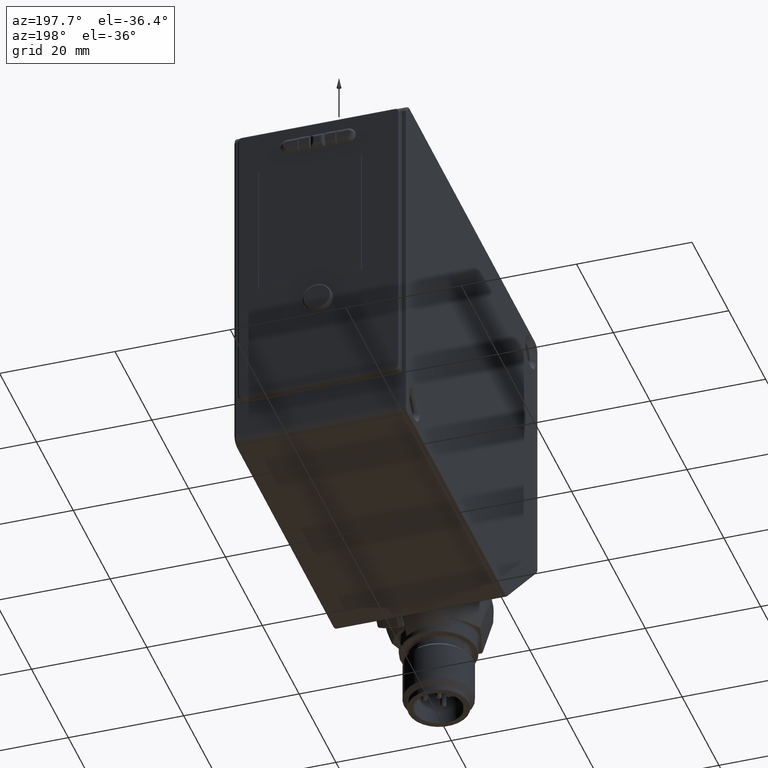
[diagram: clean part render]
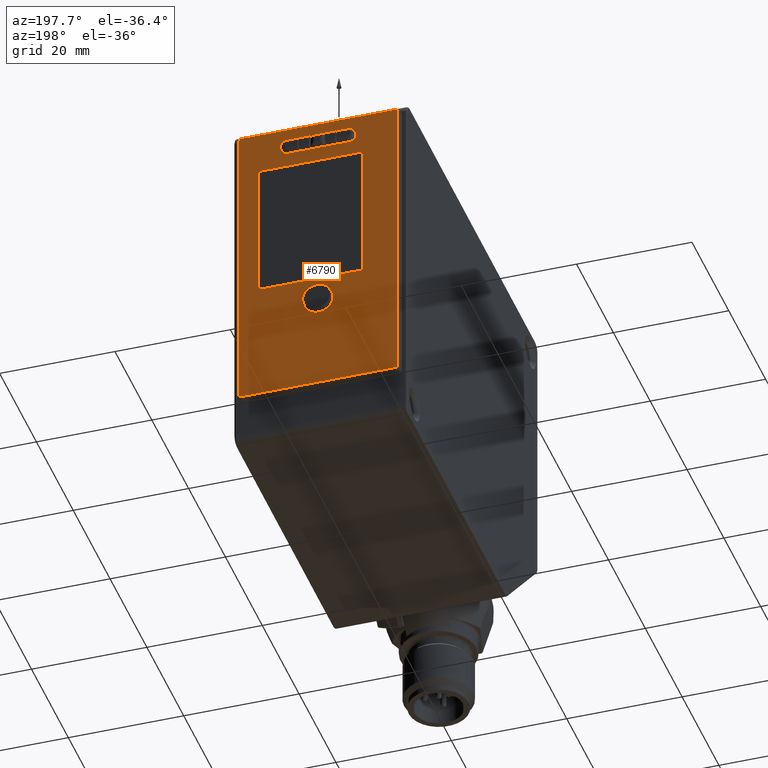
[diagram: same view with one face highlighted and labeled with its STEP entity id]
A machine part, auxiliary view. The second image highlights one B-rep face of the part: STEP entity #6790.
In plain terms, the highlighted planar face has unit normal (0, -1, 0).
Its self-contained STEP definition (entity closure, byte-faithful):
#131 = PLANE ( 'NONE',  #2222 ) ;
#289 = ORIENTED_EDGE ( 'NONE', *, *, #2742, .F. ) ;
#334 = VERTEX_POINT ( 'NONE', #8104 ) ;
#362 = VECTOR ( 'NONE', #7918, 39.37007874015748143 ) ;
#495 = VECTOR ( 'NONE', #3819, 39.37007874015748143 ) ;
#571 = ORIENTED_EDGE ( 'NONE', *, *, #4021, .F. ) ;
#613 = LINE ( 'NONE', #4624, #3157 ) ;
#635 = DIRECTION ( 'NONE',  ( 1.000000000000000000, 1.874432663284690281E-16, -4.755729317913865115E-32 ) ) ;
#649 = ORIENTED_EDGE ( 'NONE', *, *, #7025, .F. ) ;
#771 = CARTESIAN_POINT ( 'NONE',  ( -0.2994094488188980274, 2.842598425196850354, -1.305118110236232143 ) ) ;
#811 = CARTESIAN_POINT ( 'NONE',  ( 0.5413385826771653919, 2.842598425196850354, -2.145459445437416512 ) ) ;
#832 = LINE ( 'NONE', #6838, #8139 ) ;
#837 = LINE ( 'NONE', #10023, #10875 ) ;
#839 = CARTESIAN_POINT ( 'NONE',  ( 0.5413385826771653919, 2.842598425196850354, -2.136811023622058769 ) ) ;
#875 = CARTESIAN_POINT ( 'NONE',  ( 0.5265748031496063630, 2.842598425196850354, -2.151574803149618020 ) ) ;
#880 = VERTEX_POINT ( 'NONE', #9333 ) ;
#1008 = EDGE_CURVE ( 'NONE', #880, #5697, #4039, .T. ) ;
#1045 = EDGE_CURVE ( 'NONE', #8437, #10904, #11712, .T. ) ;
#1146 = DIRECTION ( 'NONE',  ( -1.874432663284690034E-16, 1.000000000000000000, -2.595596223406690201E-16 ) ) ;
#1164 = VECTOR ( 'NONE', #2163, 39.37007874015748143 ) ;
#1170 = VECTOR ( 'NONE', #6943, 39.37007874015748143 ) ;
#1239 = EDGE_CURVE ( 'NONE', #6560, #334, #4802, .T. ) ;
#1292 = VERTEX_POINT ( 'NONE', #10098 ) ;
#1324 = DIRECTION ( 'NONE',  ( 0.000000000000000000, -2.537156661354850070E-16, -1.000000000000000000 ) ) ;
#1430 = CARTESIAN_POINT ( 'NONE',  ( -0.5413385826771653919, 2.842598425196850354, -0.08366141732284647359 ) ) ;
#1573 = LINE ( 'NONE', #11735, #8996 ) ;
#1611 = EDGE_CURVE ( 'NONE', #12330, #8437, #3800, .T. ) ;
#1733 = CARTESIAN_POINT ( 'NONE',  ( 0.5352232249649644391, 2.842598425196850354, -2.151574803149617576 ) ) ;
#1751 = ORIENTED_EDGE ( 'NONE', *, *, #3850, .F. ) ;
#1752 = ORIENTED_EDGE ( 'NONE', *, *, #1008, .F. ) ;
#1883 = EDGE_CURVE ( 'NONE', #5697, #6630, #11361, .T. ) ;
#1920 = CARTESIAN_POINT ( 'NONE',  ( 1.372272051941960522E-15, 2.842598425196850354, -1.485236146006425395 ) ) ;
#1946 = CARTESIAN_POINT ( 'NONE',  ( -0.3297244094488182009, 2.842598425196850354, -0.06889763779528773613 ) ) ;
#1978 = LINE ( 'NONE', #8986, #1170 ) ;
#1982 = DIRECTION ( 'NONE',  ( 9.957998584096360084E-17, 1.000000000000000000, -4.461716312948860181E-32 ) ) ;
#1990 = DIRECTION ( 'NONE',  ( 0.000000000000000000, 0.000000000000000000, -1.000000000000000000 ) ) ;
#2046 = DIRECTION ( 'NONE',  ( -1.000000000000000000, 0.000000000000000000, 0.000000000000000000 ) ) ;
#2057 = DIRECTION ( 'NONE',  ( -1.874432663284690034E-16, 1.000000000000000000, -2.541419081062429836E-16 ) ) ;
#2079 = VERTEX_POINT ( 'NONE', #839 ) ;
#2136 = VERTEX_POINT ( 'NONE', #3272 ) ;
#2163 = DIRECTION ( 'NONE',  ( 1.000000000000000000, 1.874432663284690281E-16, -4.755729317913865115E-32 ) ) ;
#2222 = AXIS2_PLACEMENT_3D ( 'NONE', #11177, #3119, #1324 ) ;
#2380 = CARTESIAN_POINT ( 'NONE',  ( 0.4013779527559055427, 2.842598425196850354, -0.3681102362204847211 ) ) ;
#2414 = EDGE_CURVE ( 'NONE', #11590, #12859, #2541, .T. ) ;
#2541 = CIRCLE ( 'NONE', #7600, 0.007874015748031449116 ) ;
#2596 = EDGE_CURVE ( 'NONE', #7769, #7208, #8432, .T. ) ;
#2649 = DIRECTION ( 'NONE',  ( -1.000000000000000000, -1.874432663284690281E-16, 4.755729317913865115E-32 ) ) ;
#2683 = CARTESIAN_POINT ( 'NONE',  ( -0.2076771553717933205, 2.842598425196850354, -0.2086798270857748161 ) ) ;
#2742 = EDGE_CURVE ( 'NONE', #5562, #13043, #4442, .T. ) ;
#2849 = CARTESIAN_POINT ( 'NONE',  ( -0.5352232249649641060, 2.842598425196850354, -0.06889763779528743082 ) ) ;
#2857 = EDGE_LOOP ( 'NONE', ( #11115, #6584, #1752, #649, #2916, #9401, #6359, #7391, #289, #3981, #7881, #571 ) ) ;
#2879 = VECTOR ( 'NONE', #5721, 39.37007874015748143 ) ;
#2909 = CARTESIAN_POINT ( 'NONE',  ( 5.544313718023819693E-16, 2.842598425196851242, -0.2578924255109713570 ) ) ;
#2916 = ORIENTED_EDGE ( 'NONE', *, *, #8406, .F. ) ;
#3065 = LINE ( 'NONE', #6224, #7498 ) ;
#3069 = DIRECTION ( 'NONE',  ( 0.000000000000000000, 0.000000000000000000, 1.000000000000000000 ) ) ;
#3119 = DIRECTION ( 'NONE',  ( 1.874432663284690281E-16, -1.000000000000000000, 2.537156661354850070E-16 ) ) ;
#3157 = VECTOR ( 'NONE', #8666, 39.37007874015748143 ) ;
#3228 = CARTESIAN_POINT ( 'NONE',  ( 5.544313718023819693E-16, 2.842598425196851242, -0.2578924255109708019 ) ) ;
#3272 = CARTESIAN_POINT ( 'NONE',  ( 0.2076771753368677198, 2.842598425196851242, -0.1594672286605791911 ) ) ;
#3274 = CARTESIAN_POINT ( 'NONE',  ( -0.5265748031496063630, 2.842598425196850354, -0.06889763779528745857 ) ) ;
#3276 = CARTESIAN_POINT ( 'NONE',  ( 0.4092519685039370803, 2.842598425196850354, -1.305118110236232143 ) ) ;
#3304 = FACE_BOUND ( 'NONE', #13072, .T. ) ;
#3361 = LINE ( 'NONE', #11222, #1164 ) ;
#3530 = CARTESIAN_POINT ( 'NONE',  ( 0.4013779527559054872, 2.842598425196850354, -1.312992125984264291 ) ) ;
#3548 = DIRECTION ( 'NONE',  ( -1.874432663284690034E-16, 1.000000000000000000, -2.541419081062429836E-16 ) ) ;
#3558 = LINE ( 'NONE', #10751, #2879 ) ;
#3800 = LINE ( 'NONE', #1946, #8078 ) ;
#3819 = DIRECTION ( 'NONE',  ( 1.000000000000000000, 1.874432133889090112E-16, -1.130936140756220057E-16 ) ) ;
#3838 = DIRECTION ( 'NONE',  ( -1.000000000000000000, -1.874432663284690281E-16, 4.755729317913865115E-32 ) ) ;
#3850 = EDGE_CURVE ( 'NONE', #334, #2079, #4341, .T. ) ;
#3854 = VERTEX_POINT ( 'NONE', #6756 ) ;
#3902 = VERTEX_POINT ( 'NONE', #11701 ) ;
#3912 = DIRECTION ( 'NONE',  ( -1.874432663284690034E-16, 1.000000000000000000, -2.595596223406690201E-16 ) ) ;
#3946 = VECTOR ( 'NONE', #6074, 39.37007874015748143 ) ;
#3981 = ORIENTED_EDGE ( 'NONE', *, *, #5487, .F. ) ;
#4021 = EDGE_CURVE ( 'NONE', #2136, #10501, #7979, .T. ) ;
#4039 = LINE ( 'NONE', #11833, #9594 ) ;
#4109 = EDGE_CURVE ( 'NONE', #11457, #12330, #12038, .T. ) ;
#4334 = CARTESIAN_POINT ( 'NONE',  ( -0.5413385826771658360, 2.842598425196849909, -2.136811023622058769 ) ) ;
#4341 =( BOUNDED_CURVE ( )  B_SPLINE_CURVE ( 3, ( #875, #1733, #811, #5753 ),
 .UNSPECIFIED., .F., .T. ) 
 B_SPLINE_CURVE_WITH_KNOTS ( ( 4, 4 ),
 ( 0.000000000000000000, 1.000000000000000000 ),
 .UNSPECIFIED. ) 
 CURVE ( )  GEOMETRIC_REPRESENTATION_ITEM ( )  RATIONAL_B_SPLINE_CURVE ( ( 1.000000000000000000, 0.8047378541243640493, 0.8047378541243640493, 1.000000000000000000 ) ) 
 REPRESENTATION_ITEM ( '' )  );
#4348 = EDGE_CURVE ( 'NONE', #4625, #6777, #1978, .T. ) ;
#4418 = CARTESIAN_POINT ( 'NONE',  ( -0.5413385826771653919, 2.842598425196850798, -2.145459445437416512 ) ) ;
#4442 = LINE ( 'NONE', #6429, #11360 ) ;
#4573 = CARTESIAN_POINT ( 'NONE',  ( 0.4092519685039370247, 2.842598425196850354, -1.538385752305637899 ) ) ;
#4624 = CARTESIAN_POINT ( 'NONE',  ( 5.544313718023819693E-16, 2.842598425196850354, -1.312992125984263847 ) ) ;
#4625 = VERTEX_POINT ( 'NONE', #11919 ) ;
#4647 = CARTESIAN_POINT ( 'NONE',  ( -0.5352232249649642171, 2.842598425196850798, -2.151574803149618464 ) ) ;
#4699 = DIRECTION ( 'NONE',  ( 2.602085213965226103E-14, 0.000000000000000000, -1.000000000000000000 ) ) ;
#4707 = DIRECTION ( 'NONE',  ( 0.000000000000000000, 0.000000000000000000, 1.000000000000000000 ) ) ;
#4802 = LINE ( 'NONE', #8838, #495 ) ;
#4826 = VERTEX_POINT ( 'NONE', #5245 ) ;
#4966 = CARTESIAN_POINT ( 'NONE',  ( -0.2915354330708657682, 2.842598425196850354, -0.3681102362204842771 ) ) ;
#5190 = CARTESIAN_POINT ( 'NONE',  ( 0.1254921359667893477, 2.842598425196851242, -0.2578924255109708019 ) ) ;
#5226 = DIRECTION ( 'NONE',  ( 0.000000000000000000, 0.000000000000000000, 1.000000000000000000 ) ) ;
#5245 = CARTESIAN_POINT ( 'NONE',  ( -0.2076771553717933205, 2.842598425196851242, -0.1594672286605780809 ) ) ;
#5251 = EDGE_LOOP ( 'NONE', ( #7354, #10087, #1751, #7567, #7808, #8580, #10245, #13052 ) ) ;
#5374 = VERTEX_POINT ( 'NONE', #11692 ) ;
#5487 = EDGE_CURVE ( 'NONE', #10683, #5562, #9989, .T. ) ;
#5521 = CARTESIAN_POINT ( 'NONE',  ( 0.5265748031496062520, 2.842598425196850354, -0.06889763779528819410 ) ) ;
#5562 = VERTEX_POINT ( 'NONE', #11835 ) ;
#5632 = CARTESIAN_POINT ( 'NONE',  ( -0.2994094488188978609, 2.842598425196851242, -0.3681102362204843881 ) ) ;
#5697 = VERTEX_POINT ( 'NONE', #8314 ) ;
#5709 = CARTESIAN_POINT ( 'NONE',  ( -0.5265748031496063630, 2.842598425196851242, -2.151574803149618020 ) ) ;
#5721 = DIRECTION ( 'NONE',  ( 5.716656040271359879E-16, 2.537156661354850070E-16, 1.000000000000000000 ) ) ;
#5753 = CARTESIAN_POINT ( 'NONE',  ( 0.5413385826771653919, 2.842598425196850354, -2.136811023622058769 ) ) ;
#5768 = EDGE_CURVE ( 'NONE', #6954, #6560, #8902, .T. ) ;
#5810 = AXIS2_PLACEMENT_3D ( 'NONE', #2380, #9438, #7334 ) ;
#5841 = EDGE_CURVE ( 'NONE', #6630, #2136, #832, .T. ) ;
#5883 = CARTESIAN_POINT ( 'NONE',  ( -0.5413385826771653919, 2.842598425196850354, -0.08366141732284647359 ) ) ;
#5945 = CARTESIAN_POINT ( 'NONE',  ( -0.5265748031496063630, 2.842598425196850354, -0.06889763779528745857 ) ) ;
#5949 = CARTESIAN_POINT ( 'NONE',  ( 5.544313718023819693E-16, 2.842598425196851242, -0.2578924255109708019 ) ) ;
#5961 = VECTOR ( 'NONE', #9163, 39.37007874015748143 ) ;
#6074 = DIRECTION ( 'NONE',  ( -1.000000000000000000, -1.874432663284690281E-16, 4.755729317913865115E-32 ) ) ;
#6160 = ORIENTED_EDGE ( 'NONE', *, *, #11870, .F. ) ;
#6193 = VERTEX_POINT ( 'NONE', #5632 ) ;
#6221 = EDGE_CURVE ( 'NONE', #1292, #11590, #9792, .T. ) ;
#6224 = CARTESIAN_POINT ( 'NONE',  ( -0.2994094488188980274, 2.842598425196850354, -1.538385752305637899 ) ) ;
#6294 = AXIS2_PLACEMENT_3D ( 'NONE', #12175, #2057, #5226 ) ;
#6359 = ORIENTED_EDGE ( 'NONE', *, *, #11372, .F. ) ;
#6429 = CARTESIAN_POINT ( 'NONE',  ( 5.544313718023819693E-16, 2.842598425196851242, -0.2578924255109708019 ) ) ;
#6452 = CIRCLE ( 'NONE', #5810, 0.007874015748031516770 ) ;
#6560 = VERTEX_POINT ( 'NONE', #10528 ) ;
#6584 = ORIENTED_EDGE ( 'NONE', *, *, #1883, .F. ) ;
#6610 = EDGE_CURVE ( 'NONE', #12859, #7769, #613, .T. ) ;
#6630 = VERTEX_POINT ( 'NONE', #12896 ) ;
#6660 = CIRCLE ( 'NONE', #12156, 0.1003937007874015630 ) ;
#6756 = CARTESIAN_POINT ( 'NONE',  ( -0.1254921160017145876, 2.842598425196851242, -0.2578924255109708019 ) ) ;
#6777 = VERTEX_POINT ( 'NONE', #7075 ) ;
#6790 = ADVANCED_FACE ( 'NONE', ( #9180, #7337, #3304, #11374 ), #131, .F. ) ;
#6838 = CARTESIAN_POINT ( 'NONE',  ( 5.544313718023819693E-16, 2.842598425196851242, -0.1594672286605791911 ) ) ;
#6943 = DIRECTION ( 'NONE',  ( 1.000000000000000000, 1.874432663284690281E-16, -4.755729317913865115E-32 ) ) ;
#6954 = VERTEX_POINT ( 'NONE', #4334 ) ;
#7025 = EDGE_CURVE ( 'NONE', #5374, #880, #3361, .T. ) ;
#7075 = CARTESIAN_POINT ( 'NONE',  ( 0.4013779527559055427, 2.842598425196851242, -0.3602362204724530725 ) ) ;
#7208 = VERTEX_POINT ( 'NONE', #771 ) ;
#7300 = EDGE_CURVE ( 'NONE', #10904, #6954, #837, .T. ) ;
#7334 = DIRECTION ( 'NONE',  ( 0.000000000000000000, 0.000000000000000000, 1.000000000000000000 ) ) ;
#7337 = FACE_BOUND ( 'NONE', #8135, .T. ) ;
#7346 = CARTESIAN_POINT ( 'NONE',  ( 0.5265748031496062520, 2.842598425196850354, -0.06889763779528819410 ) ) ;
#7354 = ORIENTED_EDGE ( 'NONE', *, *, #4109, .F. ) ;
#7378 = CARTESIAN_POINT ( 'NONE',  ( 5.544313718023819693E-16, 2.842598425196851242, -0.1594672286605780809 ) ) ;
#7391 = ORIENTED_EDGE ( 'NONE', *, *, #8152, .F. ) ;
#7498 = VECTOR ( 'NONE', #10438, 39.37007874015748143 ) ;
#7567 = ORIENTED_EDGE ( 'NONE', *, *, #1239, .F. ) ;
#7592 = CARTESIAN_POINT ( 'NONE',  ( 0.5413385826771656140, 2.842598425196851242, -0.08366141732284727850 ) ) ;
#7600 = AXIS2_PLACEMENT_3D ( 'NONE', #12846, #8680, #4699 ) ;
#7652 = EDGE_CURVE ( 'NONE', #6193, #4625, #10456, .T. ) ;
#7767 = ORIENTED_EDGE ( 'NONE', *, *, #12987, .F. ) ;
#7769 = VERTEX_POINT ( 'NONE', #12682 ) ;
#7808 = ORIENTED_EDGE ( 'NONE', *, *, #5768, .F. ) ;
#7848 = CARTESIAN_POINT ( 'NONE',  ( -0.1003937007874002030, 2.842598425196850354, -1.485236146006425395 ) ) ;
#7862 = DIRECTION ( 'NONE',  ( 1.000000000000000000, 1.874432663284690281E-16, -4.755729317913865115E-32 ) ) ;
#7881 = ORIENTED_EDGE ( 'NONE', *, *, #10271, .F. ) ;
#7918 = DIRECTION ( 'NONE',  ( -1.000000000000000000, -1.874432663284690281E-16, 4.755729317913865115E-32 ) ) ;
#7979 = CIRCLE ( 'NONE', #6294, 0.04921259842519607602 ) ;
#8078 = VECTOR ( 'NONE', #10015, 39.37007874015748143 ) ;
#8080 = CARTESIAN_POINT ( 'NONE',  ( -0.05462597426943133216, 2.842598425196851242, -0.2578924255109708019 ) ) ;
#8104 = CARTESIAN_POINT ( 'NONE',  ( 0.5265748031496063630, 2.842598425196850354, -2.151574803149618020 ) ) ;
#8112 = CARTESIAN_POINT ( 'NONE',  ( 5.544313718023819693E-16, 2.842598425196851242, -0.1594672286605791911 ) ) ;
#8135 = EDGE_LOOP ( 'NONE', ( #9844, #7767, #11047, #8865, #9927, #12920, #8987, #12290 ) ) ;
#8139 = VECTOR ( 'NONE', #635, 39.37007874015748143 ) ;
#8152 = EDGE_CURVE ( 'NONE', #13043, #3854, #1573, .T. ) ;
#8227 = EDGE_CURVE ( 'NONE', #2079, #11457, #3558, .T. ) ;
#8314 = CARTESIAN_POINT ( 'NONE',  ( 0.05462599423450593961, 2.842598425196851242, -0.1594672286605791911 ) ) ;
#8338 = VECTOR ( 'NONE', #3838, 39.37007874015748143 ) ;
#8393 = CARTESIAN_POINT ( 'NONE',  ( 0.5413385826771656140, 2.842598425196851242, -0.08366141732284727850 ) ) ;
#8406 = EDGE_CURVE ( 'NONE', #4826, #5374, #10280, .T. ) ;
#8432 = CIRCLE ( 'NONE', #12035, 0.007874015748031449116 ) ;
#8437 = VERTEX_POINT ( 'NONE', #3274 ) ;
#8461 = CARTESIAN_POINT ( 'NONE',  ( 0.5413385826771653919, 2.842598425196850354, -0.07501299550748943834 ) ) ;
#8580 = ORIENTED_EDGE ( 'NONE', *, *, #7300, .F. ) ;
#8666 = DIRECTION ( 'NONE',  ( -1.000000000000000000, -1.874432663284690281E-16, 4.755729317913865115E-32 ) ) ;
#8680 = DIRECTION ( 'NONE',  ( -1.874432663284690034E-16, 1.000000000000000000, -2.595596223406690201E-16 ) ) ;
#8756 = DIRECTION ( 'NONE',  ( -4.830462693667630213E-16, -2.537156661354850070E-16, -1.000000000000000000 ) ) ;
#8838 = CARTESIAN_POINT ( 'NONE',  ( -0.3297244094488193111, 2.842598425196850354, -2.151574803149618020 ) ) ;
#8865 = ORIENTED_EDGE ( 'NONE', *, *, #6610, .F. ) ;
#8902 =( BOUNDED_CURVE ( )  B_SPLINE_CURVE ( 3, ( #11926, #4418, #4647, #5709 ),
 .UNSPECIFIED., .F., .T. ) 
 B_SPLINE_CURVE_WITH_KNOTS ( ( 4, 4 ),
 ( 0.000000000000000000, 1.000000000000000000 ),
 .UNSPECIFIED. ) 
 CURVE ( )  GEOMETRIC_REPRESENTATION_ITEM ( )  RATIONAL_B_SPLINE_CURVE ( ( 1.000000000000000000, 0.8047378541243681571, 0.8047378541243681571, 1.000000000000000000 ) ) 
 REPRESENTATION_ITEM ( '' )  );
#8986 = CARTESIAN_POINT ( 'NONE',  ( 5.544313718023819693E-16, 2.842598425196851242, -0.3602362204724527950 ) ) ;
#8987 = ORIENTED_EDGE ( 'NONE', *, *, #11974, .F. ) ;
#8996 = VECTOR ( 'NONE', #9629, 39.37007874015748143 ) ;
#9163 = DIRECTION ( 'NONE',  ( 1.000000000000000000, 1.874432663284690281E-16, -4.755729317913865115E-32 ) ) ;
#9180 = FACE_BOUND ( 'NONE', #2857, .T. ) ;
#9241 = LINE ( 'NONE', #3228, #3946 ) ;
#9333 = CARTESIAN_POINT ( 'NONE',  ( -0.05462597426943110318, 2.842598425196851242, -0.1594672286605790523 ) ) ;
#9401 = ORIENTED_EDGE ( 'NONE', *, *, #12398, .F. ) ;
#9438 = DIRECTION ( 'NONE',  ( -1.874432663284690034E-16, 1.000000000000000000, -2.595596223406690201E-16 ) ) ;
#9594 = VECTOR ( 'NONE', #7862, 39.37007874015748143 ) ;
#9629 = DIRECTION ( 'NONE',  ( -1.000000000000000000, -1.874432663284690281E-16, 4.755729317913865115E-32 ) ) ;
#9768 = LINE ( 'NONE', #2909, #362 ) ;
#9792 = LINE ( 'NONE', #4573, #11588 ) ;
#9844 = ORIENTED_EDGE ( 'NONE', *, *, #7652, .F. ) ;
#9923 = CARTESIAN_POINT ( 'NONE',  ( -0.5413385826771653919, 2.842598425196850354, -0.07501299550748864731 ) ) ;
#9927 = ORIENTED_EDGE ( 'NONE', *, *, #2414, .F. ) ;
#9989 = LINE ( 'NONE', #5949, #8338 ) ;
#10015 = DIRECTION ( 'NONE',  ( -1.000000000000000000, -1.874432133889090112E-16, 5.273559366969489623E-16 ) ) ;
#10023 = CARTESIAN_POINT ( 'NONE',  ( -0.5413385826771653919, 2.842598425196850354, -0.08366141732284647359 ) ) ;
#10087 = ORIENTED_EDGE ( 'NONE', *, *, #8227, .F. ) ;
#10098 = CARTESIAN_POINT ( 'NONE',  ( 0.4092519685039371913, 2.842598425196851242, -0.3681102362204846101 ) ) ;
#10163 = VERTEX_POINT ( 'NONE', #7848 ) ;
#10199 = CARTESIAN_POINT ( 'NONE',  ( -0.2915354330708665453, 2.842598425196850354, -1.305118110236232143 ) ) ;
#10245 = ORIENTED_EDGE ( 'NONE', *, *, #1045, .F. ) ;
#10271 = EDGE_CURVE ( 'NONE', #10501, #10683, #9768, .T. ) ;
#10280 = LINE ( 'NONE', #7378, #12784 ) ;
#10438 = DIRECTION ( 'NONE',  ( -0.000000000000000000, 2.537156661354850070E-16, 1.000000000000000000 ) ) ;
#10456 = CIRCLE ( 'NONE', #12996, 0.007874015748031516770 ) ;
#10501 = VERTEX_POINT ( 'NONE', #10565 ) ;
#10528 = CARTESIAN_POINT ( 'NONE',  ( -0.5265748031496063630, 2.842598425196851242, -2.151574803149618020 ) ) ;
#10565 = CARTESIAN_POINT ( 'NONE',  ( 0.2076771753368677198, 2.842598425196851242, -0.2578924255109713570 ) ) ;
#10683 = VERTEX_POINT ( 'NONE', #5190 ) ;
#10751 = CARTESIAN_POINT ( 'NONE',  ( 0.5413385826771657250, 2.842598425196850354, -1.538385752305637899 ) ) ;
#10875 = VECTOR ( 'NONE', #8756, 39.37007874015748143 ) ;
#10904 = VERTEX_POINT ( 'NONE', #1430 ) ;
#11047 = ORIENTED_EDGE ( 'NONE', *, *, #2596, .F. ) ;
#11115 = ORIENTED_EDGE ( 'NONE', *, *, #5841, .F. ) ;
#11177 = CARTESIAN_POINT ( 'NONE',  ( 5.544313718023819693E-16, 2.842598425196850354, -1.538385752305637899 ) ) ;
#11222 = CARTESIAN_POINT ( 'NONE',  ( 5.544313718023819693E-16, 2.842598425196851242, -0.1594672286605786360 ) ) ;
#11315 = CIRCLE ( 'NONE', #11724, 0.04921259842519686012 ) ;
#11360 = VECTOR ( 'NONE', #2649, 39.37007874015748143 ) ;
#11361 = LINE ( 'NONE', #8112, #5961 ) ;
#11372 = EDGE_CURVE ( 'NONE', #3854, #3902, #9241, .T. ) ;
#11374 = FACE_OUTER_BOUND ( 'NONE', #5251, .T. ) ;
#11406 = DIRECTION ( 'NONE',  ( 1.000000000000000000, 1.874432663284690281E-16, -4.755729317913865115E-32 ) ) ;
#11457 = VERTEX_POINT ( 'NONE', #7592 ) ;
#11588 = VECTOR ( 'NONE', #12770, 39.37007874015748143 ) ;
#11590 = VERTEX_POINT ( 'NONE', #3276 ) ;
#11692 = CARTESIAN_POINT ( 'NONE',  ( -0.1254921160017145321, 2.842598425196851242, -0.1594672286605786915 ) ) ;
#11701 = CARTESIAN_POINT ( 'NONE',  ( -0.2076771553717933205, 2.842598425196851242, -0.2578924255109709684 ) ) ;
#11712 =( BOUNDED_CURVE ( )  B_SPLINE_CURVE ( 3, ( #5945, #2849, #9923, #5883 ),
 .UNSPECIFIED., .F., .T. ) 
 B_SPLINE_CURVE_WITH_KNOTS ( ( 4, 4 ),
 ( 0.000000000000000000, 1.000000000000000000 ),
 .UNSPECIFIED. ) 
 CURVE ( )  GEOMETRIC_REPRESENTATION_ITEM ( )  RATIONAL_B_SPLINE_CURVE ( ( 1.000000000000000000, 0.8047378541243661587, 0.8047378541243661587, 1.000000000000000000 ) ) 
 REPRESENTATION_ITEM ( '' )  );
#11724 = AXIS2_PLACEMENT_3D ( 'NONE', #2683, #3548, #4707 ) ;
#11735 = CARTESIAN_POINT ( 'NONE',  ( 5.544313718023819693E-16, 2.842598425196851242, -0.2578924255109708019 ) ) ;
#11833 = CARTESIAN_POINT ( 'NONE',  ( 5.544313718023819693E-16, 2.842598425196851242, -0.1594672286605791911 ) ) ;
#11835 = CARTESIAN_POINT ( 'NONE',  ( 0.05462599423450590491, 2.842598425196851242, -0.2578924255109708019 ) ) ;
#11870 = EDGE_CURVE ( 'NONE', #10163, #10163, #6660, .T. ) ;
#11919 = CARTESIAN_POINT ( 'NONE',  ( -0.2915354330708657682, 2.842598425196851242, -0.3602362204724527950 ) ) ;
#11926 = CARTESIAN_POINT ( 'NONE',  ( -0.5413385826771658360, 2.842598425196849909, -2.136811023622058769 ) ) ;
#11974 = EDGE_CURVE ( 'NONE', #6777, #1292, #6452, .T. ) ;
#12035 = AXIS2_PLACEMENT_3D ( 'NONE', #10199, #1146, #3069 ) ;
#12038 =( BOUNDED_CURVE ( )  B_SPLINE_CURVE ( 3, ( #8393, #8461, #12492, #7346 ),
 .UNSPECIFIED., .F., .T. ) 
 B_SPLINE_CURVE_WITH_KNOTS ( ( 4, 4 ),
 ( 0.000000000000000000, 1.000000000000000000 ),
 .UNSPECIFIED. ) 
 CURVE ( )  GEOMETRIC_REPRESENTATION_ITEM ( )  RATIONAL_B_SPLINE_CURVE ( ( 1.000000000000000000, 0.8047378541243661587, 0.8047378541243661587, 1.000000000000000000 ) ) 
 REPRESENTATION_ITEM ( '' )  );
#12156 = AXIS2_PLACEMENT_3D ( 'NONE', #1920, #1982, #2046 ) ;
#12175 = CARTESIAN_POINT ( 'NONE',  ( 0.2076771753368677198, 2.842598425196850354, -0.2086798270857751769 ) ) ;
#12290 = ORIENTED_EDGE ( 'NONE', *, *, #4348, .F. ) ;
#12330 = VERTEX_POINT ( 'NONE', #5521 ) ;
#12398 = EDGE_CURVE ( 'NONE', #3902, #4826, #11315, .T. ) ;
#12492 = CARTESIAN_POINT ( 'NONE',  ( 0.5352232249649641060, 2.842598425196850354, -0.06889763779528822185 ) ) ;
#12682 = CARTESIAN_POINT ( 'NONE',  ( -0.2915354330708665453, 2.842598425196850354, -1.312992125984263625 ) ) ;
#12770 = DIRECTION ( 'NONE',  ( 0.000000000000000000, -2.537156661354850070E-16, -1.000000000000000000 ) ) ;
#12784 = VECTOR ( 'NONE', #11406, 39.37007874015748143 ) ;
#12846 = CARTESIAN_POINT ( 'NONE',  ( 0.4013779527559055427, 2.842598425196850354, -1.305118110236232143 ) ) ;
#12859 = VERTEX_POINT ( 'NONE', #3530 ) ;
#12896 = CARTESIAN_POINT ( 'NONE',  ( 0.1254921359667893754, 2.842598425196851242, -0.1594672286605791911 ) ) ;
#12920 = ORIENTED_EDGE ( 'NONE', *, *, #6221, .F. ) ;
#12987 = EDGE_CURVE ( 'NONE', #7208, #6193, #3065, .T. ) ;
#12996 = AXIS2_PLACEMENT_3D ( 'NONE', #4966, #3912, #1990 ) ;
#13043 = VERTEX_POINT ( 'NONE', #8080 ) ;
#13052 = ORIENTED_EDGE ( 'NONE', *, *, #1611, .F. ) ;
#13072 = EDGE_LOOP ( 'NONE', ( #6160 ) ) ;